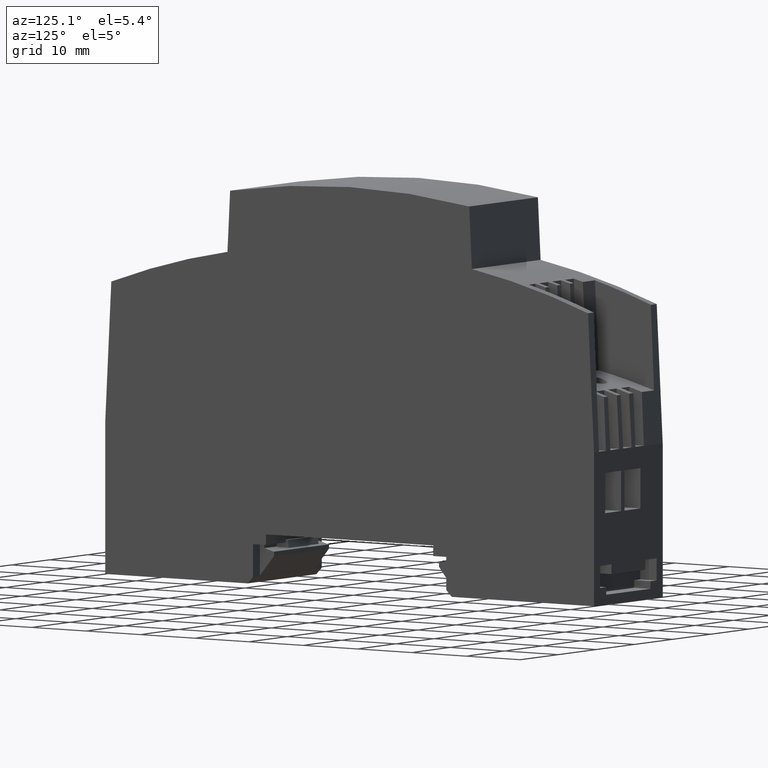
[diagram: clean part render]
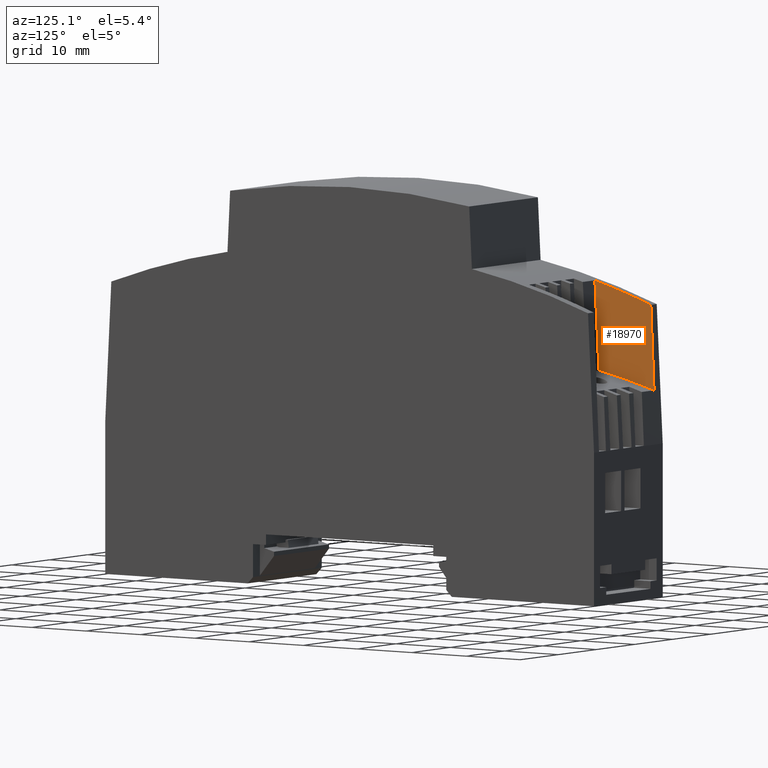
[diagram: same view with one face highlighted and labeled with its STEP entity id]
A machine part, auxiliary view. The second image highlights one B-rep face of the part: STEP entity #18970.
In plain terms, the highlighted planar face has unit normal (-1, 0.0001, -0.0087).
Its self-contained STEP definition (entity closure, byte-faithful):
#15450=CARTESIAN_POINT('',(-34.3978516779002,33.8870816047931,
7.35970804111733));
#15460=VERTEX_POINT('',#15450);
#15490=CARTESIAN_POINT('',(-11.19460135972,-82.8288520746831,
6.34261609903581));
#15500=DIRECTION('',(-6.23418326764347E-5,-0.00872631281246303,
0.999961923064171));
#15510=DIRECTION('',(0.0071436664529482,0.99993640578179,
0.00872653549841275));
#15520=AXIS2_PLACEMENT_3D('',#15490,#15500,#15510);
#15530=ELLIPSE('',#15520,119.004531327903,119.);
#15540=CARTESIAN_POINT('',(-44.5729198135532,31.3941222220604,
7.33731851279502));
#15550=VERTEX_POINT('',#15540);
#15560=EDGE_CURVE('',#15460,#15550,#15530,.T.);
#18660=CARTESIAN_POINT('',(-32.525738551909,47.7897590266515,
7.4811484882746));
#18670=DIRECTION('',(-6.23418326764347E-5,-0.00872631281246303,
0.999961923064171));
#18680=DIRECTION('',(0.999974481745962,-0.00714393847223497,
-3.40984034230077E-19));
#18690=AXIS2_PLACEMENT_3D('',#18660,#18670,#18680);
#18700=PLANE('',#18690);
#18710=ORIENTED_EDGE('',*,*,#15560,.T.);
#18720=CARTESIAN_POINT('',(-33.963084181712,41.1849967938318,
7.42342146215005));
#18730=DIRECTION('',(-0.0594665104849772,-0.998192261179459,
-0.00871457699366722));
#18740=VECTOR('',#18730,1.);
#18750=LINE('',#18720,#18740);
#18760=CARTESIAN_POINT('',(-33.5906299210077,47.4369351982592,
7.47800313013521));
#18770=VERTEX_POINT('',#18760);
#18780=EDGE_CURVE('',#18770,#15460,#18750,.T.);
#18790=ORIENTED_EDGE('',*,*,#18780,.T.);
#18800=CARTESIAN_POINT('',(-0.769551790282552,-78.3301439397721,
6.382524669765));
#18810=DIRECTION('',(-6.23418326764347E-5,-0.00872631281246303,
0.999961923064171));
#18820=DIRECTION('',(0.00714366645257238,0.999936405781792,
0.00872653549841275));
#18830=AXIS2_PLACEMENT_3D('',#18800,#18810,#18820);
#18840=ELLIPSE('',#18830,129.984106820194,129.9791574237);
#18850=CARTESIAN_POINT('',(-43.89688827352,44.2855737004905,
7.44985978127431));
#18860=VERTEX_POINT('',#18850);
#18870=EDGE_CURVE('',#18770,#18860,#18840,.T.);
#18880=ORIENTED_EDGE('',*,*,#18870,.F.);
#18890=CARTESIAN_POINT('',(-44.0594834463527,41.1849967938318,
7.42279201014886));
#18900=DIRECTION('',(0.0523663500920634,0.998589890171728,
0.00871760430689669));
#18910=VECTOR('',#18900,1.);
#18920=LINE('',#18890,#18910);
#18930=EDGE_CURVE('',#15550,#18860,#18920,.T.);
#18940=ORIENTED_EDGE('',*,*,#18930,.T.);
#18950=EDGE_LOOP('',(#18940,#18880,#18790,#18710));
#18960=FACE_OUTER_BOUND('',#18950,.T.);
#18970=ADVANCED_FACE('',(#18960),#18700,.F.);